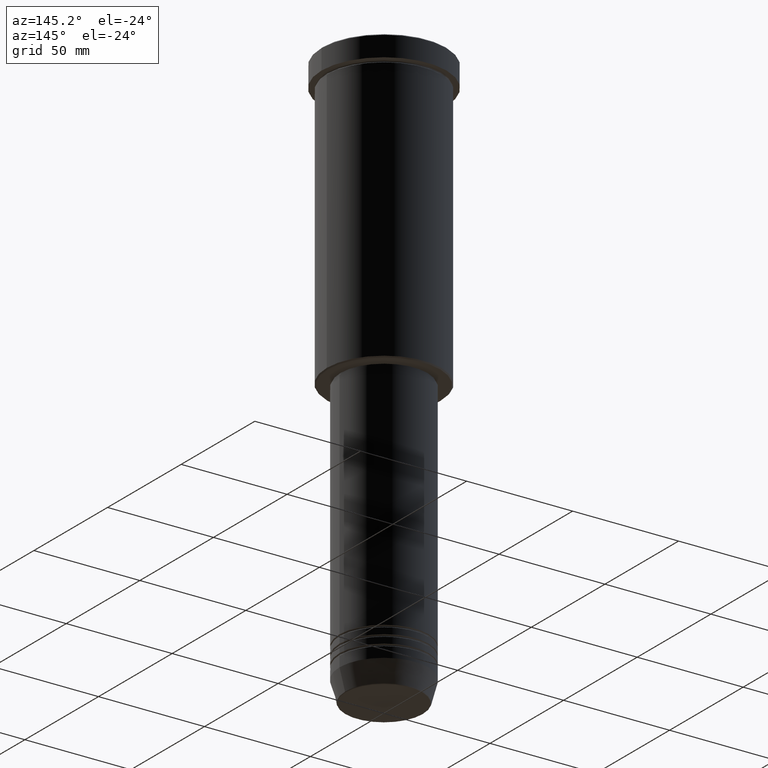
[diagram: clean part render]
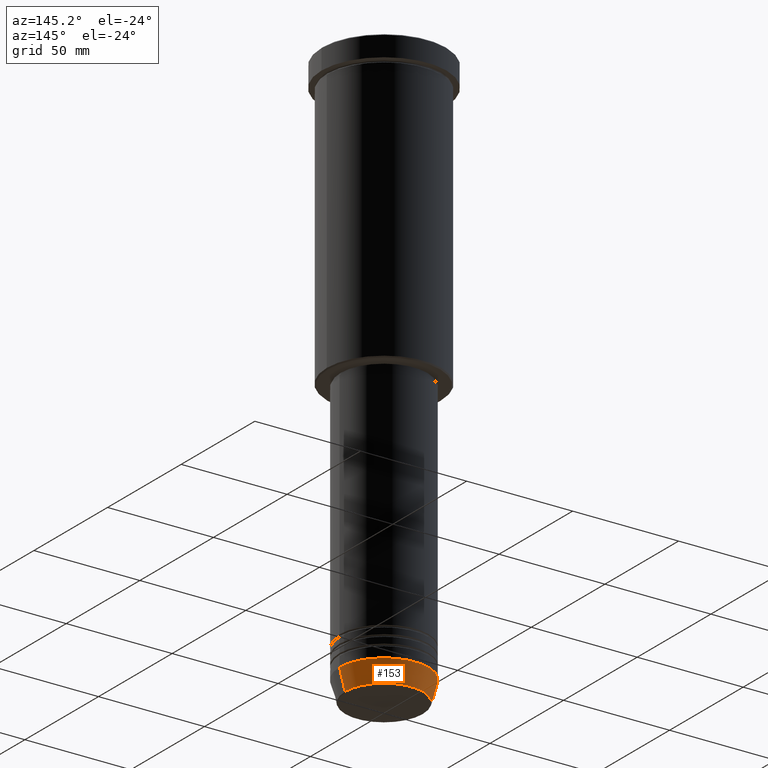
[diagram: same view with one face highlighted and labeled with its STEP entity id]
A machine part, auxiliary view. The second image highlights one B-rep face of the part: STEP entity #153.
In plain terms, the highlighted conical surface has half-angle 15 deg.
Its self-contained STEP definition (entity closure, byte-faithful):
#5 = ORIENTED_EDGE ( 'NONE', *, *, #763, .T. ) ;
#7 = CARTESIAN_POINT ( 'NONE',  ( -18.41980749484383750, 2.413767053578267458E-15, -270.6294095225512706 ) ) ;
#22 = ORIENTED_EDGE ( 'NONE', *, *, #419, .F. ) ;
#152 = LINE ( 'NONE', #1152, #525 ) ;
#153 = ADVANCED_FACE ( 'NONE', ( #1150 ), #360, .T. ) ;
#172 = DIRECTION ( 'NONE',  ( 1.000000000000000000, 0.000000000000000000, 0.000000000000000000 ) ) ;
#182 = CARTESIAN_POINT ( 'NONE',  ( -21.00000000000000000, 2.571758278209441661E-15, -261.0000000000000000 ) ) ;
#257 = DIRECTION ( 'NONE',  ( -0.2588190451025211836, 3.169619151431770488E-17, 0.9659258262890680902 ) ) ;
#296 = DIRECTION ( 'NONE',  ( -0.000000000000000000, -0.000000000000000000, 1.000000000000000000 ) ) ;
#328 = CARTESIAN_POINT ( 'NONE',  ( 0.000000000000000000, 0.000000000000000000, -261.0000000000000000 ) ) ;
#340 = VERTEX_POINT ( 'NONE', #7 ) ;
#360 = CONICAL_SURFACE ( 'NONE', #1067, 21.00000000000000000, 0.2617993877991499074 ) ;
#363 = AXIS2_PLACEMENT_3D ( 'NONE', #973, #990, #172 ) ;
#419 = EDGE_CURVE ( 'NONE', #873, #774, #459, .T. ) ;
#433 = CARTESIAN_POINT ( 'NONE',  ( 18.41980749484383750, 0.000000000000000000, -270.6294095225512706 ) ) ;
#459 = CIRCLE ( 'NONE', #363, 21.00000000000000000 ) ;
#472 = ORIENTED_EDGE ( 'NONE', *, *, #613, .F. ) ;
#523 = DIRECTION ( 'NONE',  ( 0.2588190451025211836, 0.000000000000000000, 0.9659258262890680902 ) ) ;
#525 = VECTOR ( 'NONE', #523, 1000.000000000000114 ) ;
#604 = DIRECTION ( 'NONE',  ( 1.000000000000000000, 0.000000000000000000, 0.000000000000000000 ) ) ;
#613 = EDGE_CURVE ( 'NONE', #635, #873, #152, .T. ) ;
#635 = VERTEX_POINT ( 'NONE', #433 ) ;
#696 = DIRECTION ( 'NONE',  ( -0.000000000000000000, -0.000000000000000000, 1.000000000000000000 ) ) ;
#733 = VECTOR ( 'NONE', #257, 1000.000000000000114 ) ;
#754 = AXIS2_PLACEMENT_3D ( 'NONE', #1120, #296, #1028 ) ;
#763 = EDGE_CURVE ( 'NONE', #340, #774, #1082, .T. ) ;
#774 = VERTEX_POINT ( 'NONE', #814 ) ;
#775 = CIRCLE ( 'NONE', #754, 18.41980749484383750 ) ;
#814 = CARTESIAN_POINT ( 'NONE',  ( -21.00000000000000000, 2.571758278209441661E-15, -261.0000000000000000 ) ) ;
#873 = VERTEX_POINT ( 'NONE', #1118 ) ;
#885 = EDGE_LOOP ( 'NONE', ( #1049, #5, #22, #472 ) ) ;
#973 = CARTESIAN_POINT ( 'NONE',  ( 0.000000000000000000, 0.000000000000000000, -261.0000000000000000 ) ) ;
#990 = DIRECTION ( 'NONE',  ( -0.000000000000000000, -0.000000000000000000, 1.000000000000000000 ) ) ;
#1028 = DIRECTION ( 'NONE',  ( 1.000000000000000000, 0.000000000000000000, 0.000000000000000000 ) ) ;
#1049 = ORIENTED_EDGE ( 'NONE', *, *, #1146, .T. ) ;
#1067 = AXIS2_PLACEMENT_3D ( 'NONE', #328, #696, #604 ) ;
#1082 = LINE ( 'NONE', #182, #733 ) ;
#1118 = CARTESIAN_POINT ( 'NONE',  ( 21.00000000000000000, 0.000000000000000000, -261.0000000000000000 ) ) ;
#1120 = CARTESIAN_POINT ( 'NONE',  ( 0.000000000000000000, 0.000000000000000000, -270.6294095225512706 ) ) ;
#1146 = EDGE_CURVE ( 'NONE', #635, #340, #775, .T. ) ;
#1150 = FACE_OUTER_BOUND ( 'NONE', #885, .T. ) ;
#1152 = CARTESIAN_POINT ( 'NONE',  ( 21.00000000000000000, 0.000000000000000000, -261.0000000000000000 ) ) ;